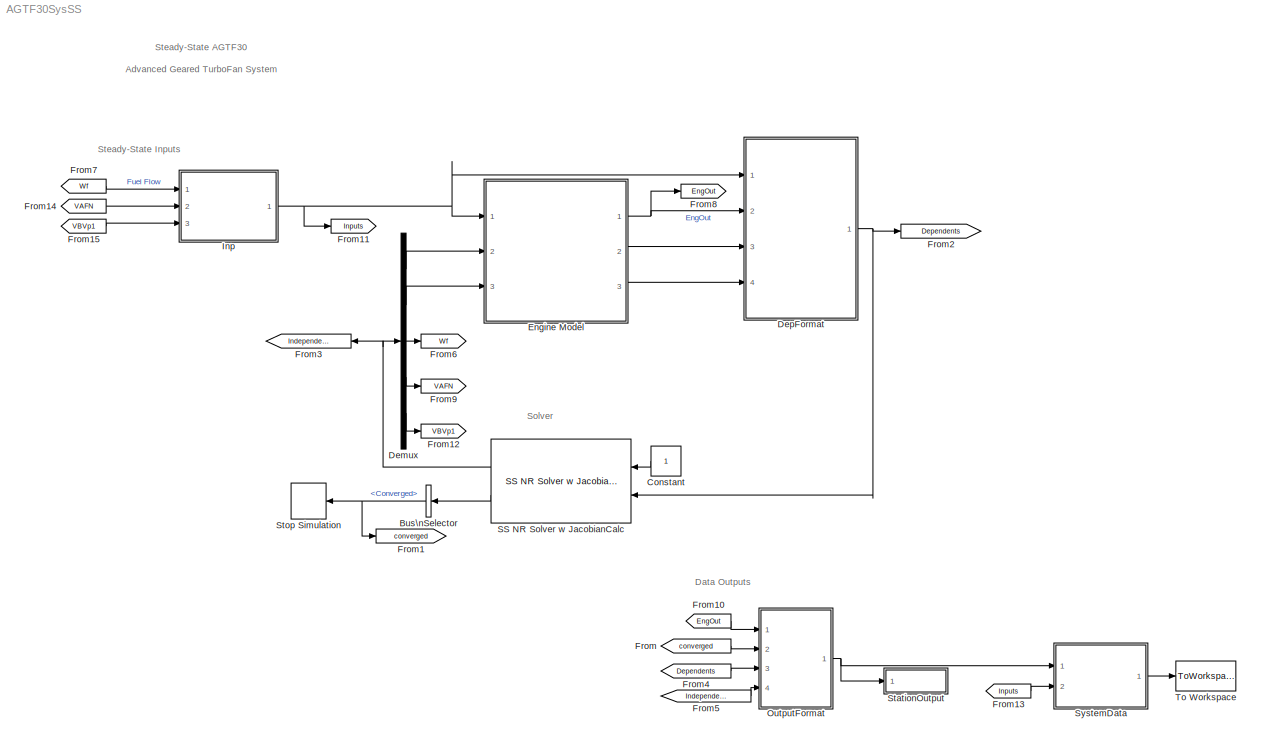
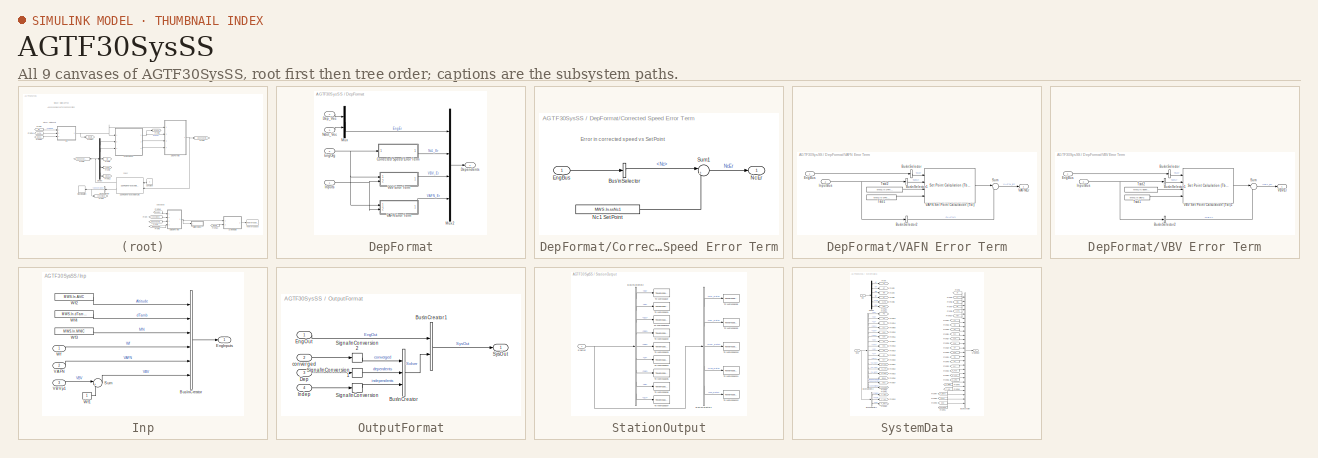
[diagram: thumbnail index - all 9 canvases of the model, root first then tree order]
MODEL AGTF30SysSS
KIND model
BLOCK [BusSelector] Bus\nSelector
  OutputSignals = Converged
  Ports = [1, 1]
  SID = 12
BLOCK [Constant] Constant
  SID = 11
BLOCK [Demux] Demux
  DisplayOption = bar
  Outputs = [7 2 1 1 1]
  Ports = [1, 5]
  SID = 9
BLOCK [SubSystem] DepFormat
  Ports = [4, 1]
  RequestExecContextInheritance = off
  SID = 113
BLOCK [SubSystem] DepFormat/Corrected Speed Error Term
  Ports = [1, 1]
  RequestExecContextInheritance = off
  SID = 333
BLOCK [BusSelector] DepFormat/Corrected Speed Error Term/Bus\nSelector
  OutputSignals = Data.FAN_Data.Nc
  Ports = [1, 1]
  SID = 118
BLOCK [Inport] DepFormat/Corrected Speed Error Term/EngBus
  IconDisplay = Port number
  SID = 334
BLOCK [Constant] DepFormat/Corrected Speed Error Term/Nc1 Set Point
  SID = 263
  Value = MWS.In.ssNc1
BLOCK [Outport] DepFormat/Corrected Speed Error Term/NcEr
  IconDisplay = Port number
  SID = 335
BLOCK [Sum] DepFormat/Corrected Speed Error Term/Sum1
  IconShape = round
  InputSameDT = off
  Inputs = |+-
  OutDataTypeStr = Inherit: Inherit via internal rule
  Ports = [2, 1]
  SID = 108
  SaturateOnIntegerOverflow = off
BLOCK [Inport] DepFormat/Dep_Vec
  IconDisplay = Port number
  Port = 4
  SID = 115
BLOCK [Outport] DepFormat/Dependents
  IconDisplay = Port number
  SID = 117
BLOCK [Inport] DepFormat/EngOrg
  IconDisplay = Port number
  Port = 2
  SID = 116
BLOCK [Inport] DepFormat/Inputs
  IconDisplay = Port number
  SID = 332
BLOCK [Mux] DepFormat/Mux
  DisplayOption = bar
  Inputs = 2
  Ports = [2, 1]
  SID = 10
BLOCK [Mux] DepFormat/Mux2
  DisplayOption = bar
  Ports = [4, 1]
  SID = 103
BLOCK [Inport] DepFormat/Ndot_Vec
  IconDisplay = Port number
  Port = 3
  SID = 114
BLOCK [SubSystem] DepFormat/VAFN Error Term
  Ports = [2, 1]
  RequestExecContextInheritance = off
  SID = 363
BLOCK [BusSelector] DepFormat/VAFN Error Term/Bus\nSelector
  OutputSignals = Data.FAN_Data.Nc
  Ports = [1, 1]
  SID = 366
BLOCK [BusSelector] DepFormat/VAFN Error Term/Bus\nSelector1
  OutputSignals = MN
  Ports = [1, 1]
  SID = 367
BLOCK [BusSelector] DepFormat/VAFN Error Term/Bus\nSelector2
  OutputSignals = VAFN
  Ports = [1, 1]
  SID = 368
BLOCK [Inport] DepFormat/VAFN Error Term/EngBus
  IconDisplay = Port number
  SID = 364
BLOCK [Inport] DepFormat/VAFN Error Term/InputBus
  IconDisplay = Port number
  Port = 2
  SID = 365
BLOCK [Sum] DepFormat/VAFN Error Term/Sum
  IconShape = round
  InputSameDT = off
  Inputs = |+-
  OutDataTypeStr = Inherit: Inherit via internal rule
  Ports = [2, 1]
  SID = 369
  SaturateOnIntegerOverflow = off
BLOCK [Constant] DepFormat/VAFN Error Term/Tstd1
  SID = 370
  Value = MWS.In.VAFNIC
BLOCK [Constant] DepFormat/VAFN Error Term/Tstd2
  SID = 371
  Value = MWS.In.VAFNManEn
BLOCK [Reference] DepFormat/VAFN Error Term/VAFN Set Point Calculation (Tbl)  REF=Lib_Cntrl_SetPoint_TMATS/Set Point Calculation (Tbl)
  DSVec_M = MWS.Cntrl.VAFN_MN
  ERVec_M = MWS.Cntrl.VAFN_Nc1
  Ports = [4, 1]
  SID = 374
  SPArray_M = MWS.Cntrl.VAFN_sch
  SourceBlock = Lib_Cntrl_SetPoint_TMATS/Set Point Calculation (Tbl)
  SourceType = T-MATS: Set Point Calculation (Tbl)
BLOCK [Outport] DepFormat/VAFN Error Term/VAFNEr
  IconDisplay = Port number
  SID = 373
BLOCK [SubSystem] DepFormat/VBV Error Term
  Ports = [2, 1]
  RequestExecContextInheritance = off
  SID = 358
BLOCK [BusSelector] DepFormat/VBV Error Term/Bus\nSelector
  OutputSignals = Data.FAN_Data.Nc
  Ports = [1, 1]
  SID = 344
BLOCK [BusSelector] DepFormat/VBV Error Term/Bus\nSelector1
  OutputSignals = MN
  Ports = [1, 1]
  SID = 353
BLOCK [BusSelector] DepFormat/VBV Error Term/Bus\nSelector2
  OutputSignals = VBV
  Ports = [1, 1]
  SID = 354
BLOCK [Inport] DepFormat/VBV Error Term/EngBus
  IconDisplay = Port number
  SID = 362
BLOCK [Inport] DepFormat/VBV Error Term/InputBus
  IconDisplay = Port number
  Port = 2
  SID = 360
BLOCK [Sum] DepFormat/VBV Error Term/Sum
  IconShape = round
  InputSameDT = off
  Inputs = |+-
  OutDataTypeStr = Inherit: Inherit via internal rule
  Ports = [2, 1]
  SID = 355
  SaturateOnIntegerOverflow = off
BLOCK [Constant] DepFormat/VBV Error Term/Tstd1
  SID = 349
  Value = MWS.In.VBVIC
BLOCK [Constant] DepFormat/VBV Error Term/Tstd2
  SID = 350
  Value = MWS.In.VBVManEn
BLOCK [Reference] DepFormat/VBV Error Term/VBV Set Point Calculation (Tbl)1  REF=Lib_Cntrl_SetPoint_TMATS/Set Point Calculation (Tbl)
  DSVec_M = MWS.Cntrl.VBV_MN
  ERVec_M = MWS.Cntrl.VBV_Nc1
  Ports = [4, 1]
  SID = 342
  SPArray_M = MWS.Cntrl.VBV_sch
  SourceBlock = Lib_Cntrl_SetPoint_TMATS/Set Point Calculation (Tbl)
  SourceType = T-MATS: Set Point Calculation (Tbl)
BLOCK [Outport] DepFormat/VBV Error Term/VBVEr
  IconDisplay = Port number
  SID = 361
BLOCK [ModelReference] Engine Model
  CopyOfModelName = AGTF30_eng.mdl
  DefaultDataLogging = on
  ModelNameDialog = AGTF30_eng.mdl
  ModelReferenceVersion = 1.306
  Ports = [3, 3]
  SID = 7
BLOCK [From] From
  GotoTag = converged
  SID = 78
BLOCK [Goto] From1
  GotoTag = converged
  SID = 81
BLOCK [From] From10
  GotoTag = EngOut
  SID = 132
BLOCK [Goto] From11
  GotoTag = Inputs
  SID = 173
BLOCK [Goto] From12
  GotoTag = VBVp1
  SID = 329
BLOCK [From] From13
  GotoTag = Inputs
  SID = 177
BLOCK [From] From14
  GotoTag = VAFN
  SID = 287
BLOCK [From] From15
  GotoTag = VBVp1
  SID = 331
BLOCK [Goto] From2
  GotoTag = Dependents
  SID = 82
BLOCK [Goto] From3
  GotoTag = Independents
  SID = 83
BLOCK [From] From4
  GotoTag = Dependents
  SID = 85
BLOCK [From] From5
  GotoTag = Independents
  SID = 87
BLOCK [Goto] From6
  GotoTag = Wf
  SID = 99
BLOCK [From] From7
  GotoTag = Wf
  SID = 101
BLOCK [Goto] From8
  GotoTag = EngOut
  SID = 104
BLOCK [Goto] From9
  GotoTag = VAFN
  SID = 328
BLOCK [SubSystem] Inp
  Ports = [3, 1]
  RequestExecContextInheritance = off
  SID = 134
BLOCK [BusCreator] Inp/Bus\nCreator
  DisplayOption = bar
  Inputs = 6
  Ports = [6, 1]
  SID = 352
BLOCK [Outport] Inp/EngInputs
  IconDisplay = Port number
  SID = 136
BLOCK [Sum] Inp/Sum
  IconShape = round
  InputSameDT = off
  Inputs = |+-
  OutDataTypeStr = Inherit: Inherit via internal rule
  Ports = [2, 1]
  SID = 356
  SaturateOnIntegerOverflow = off
BLOCK [Inport] Inp/VAFN
  IconDisplay = Port number
  Port = 2
  SID = 286
BLOCK [Inport] Inp/VBVp1
  IconDisplay = Port number
  Port = 3
  SID = 325
BLOCK [Inport] Inp/Wf
  IconDisplay = Port number
  SID = 135
BLOCK [Constant] Inp/Wf1
  SID = 357
BLOCK [Constant] Inp/Wf2
  SID = 20
  Value = MWS.In.AltIC
BLOCK [Constant] Inp/Wf3
  SID = 18
  Value = MWS.In.MNIC
BLOCK [Constant] Inp/Wf4
  SID = 21
  Value = MWS.In.dTambIC
BLOCK [SubSystem] OutputFormat
  Ports = [4, 1]
  RequestExecContextInheritance = off
  SID = 125
BLOCK [BusCreator] OutputFormat/Bus\nCreator
  DisplayOption = bar
  Inputs = 3
  Ports = [3, 1]
  SID = 79
BLOCK [BusCreator] OutputFormat/Bus\nCreator1
  DisplayOption = bar
  Inputs = 2
  Ports = [2, 1]
  SID = 88
BLOCK [Inport] OutputFormat/Dep
  IconDisplay = Port number
  Port = 3
  SID = 128
BLOCK [Inport] OutputFormat/EngOut
  IconDisplay = Port number
  SID = 126
BLOCK [Inport] OutputFormat/Indep
  IconDisplay = Port number
  Port = 4
  SID = 129
BLOCK [SignalConversion] OutputFormat/Signal\nConversion
  SID = 89
BLOCK [SignalConversion] OutputFormat/Signal\nConversion1
  SID = 90
BLOCK [SignalConversion] OutputFormat/Signal\nConversion2
  SID = 91
BLOCK [Outport] OutputFormat/SysOut
  IconDisplay = Port number
  SID = 130
BLOCK [Inport] OutputFormat/converged
  IconDisplay = Port number
  Port = 2
  SID = 127
BLOCK [Reference] SS NR Solver w JacobianCalc  REF=Lib_Solve_SSNRSolverJC_TMATS/SS NR Solver w JacobianCalc
  Cond_Limits_M = MWS.In.Lim
  Ports = [2, 2]
  SID = 8
  SJac_Per_M = MWS.In.JPerSS
  SJacobianAttempts_M = MWS.In.NRASS
  SNR_DX_M = 1
  SNR_IC_M = [MWS.In.ICcom MWS.In.ICss]'
  SNR_Mn_M = 0.000001
  SNR_Mx_M = 1000000
  SourceBlock = Lib_Solve_SSNRSolverJC_TMATS/SS NR Solver w JacobianCalc
  SourceType = T-MATS: SS NR Solver w Jacobian Calc Library Block
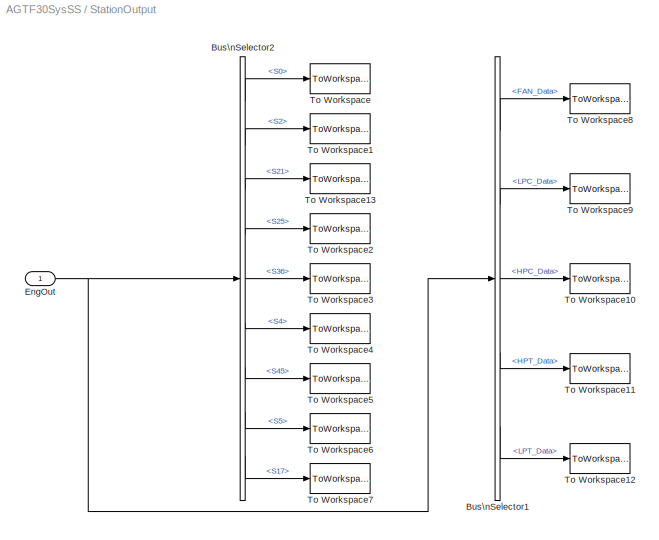
BLOCK [SubSystem] StationOutput
  Ports = [1]
  RequestExecContextInheritance = off
  SID = 43
BLOCK [BusSelector] StationOutput/Bus\nSelector1
  OutputSignals = EngOut.Data.FAN_Data,EngOut.Data.LPC_Data,EngOut.Data.HPC_Data,EngOut.Data.HPT_Data,EngOut.Data.LPT_Data
  Ports = [1, 5]
  SID = 45
BLOCK [BusSelector] StationOutput/Bus\nSelector2
  OutputSignals = EngOut.S0,EngOut.S2,EngOut.S21,EngOut.S25,EngOut.S36,EngOut.S4,EngOut.S45,EngOut.S5,EngOut.S17
  Ports = [1, 9]
  SID = 46
BLOCK [Inport] StationOutput/EngOut
  IconDisplay = Port number
  SID = 44
BLOCK [ToWorkspace] StationOutput/To Workspace
  FixptAsFi = on
  MaxDataPoints = inf
  Ports = [1]
  SID = 47
  SampleTime = -1
  Save2DSignal = 3-D array (concatenate along third dimension)
  SaveFormat = Timeseries
  VariableName = out_S0
BLOCK [ToWorkspace] StationOutput/To Workspace1
  FixptAsFi = on
  MaxDataPoints = inf
  Ports = [1]
  SID = 48
  SampleTime = -1
  Save2DSignal = 3-D array (concatenate along third dimension)
  SaveFormat = Timeseries
  VariableName = out_S2
BLOCK [ToWorkspace] StationOutput/To Workspace10
  FixptAsFi = on
  MaxDataPoints = inf
  Ports = [1]
  SID = 49
  SampleTime = -1
  Save2DSignal = 3-D array (concatenate along third dimension)
  SaveFormat = Timeseries
  VariableName = out_HPCmp
BLOCK [ToWorkspace] StationOutput/To Workspace11
  FixptAsFi = on
  MaxDataPoints = inf
  Ports = [1]
  SID = 50
  SampleTime = -1
  Save2DSignal = 3-D array (concatenate along third dimension)
  SaveFormat = Timeseries
  VariableName = out_HPTmp
BLOCK [ToWorkspace] StationOutput/To Workspace12
  FixptAsFi = on
  MaxDataPoints = inf
  Ports = [1]
  SID = 51
  SampleTime = -1
  Save2DSignal = 3-D array (concatenate along third dimension)
  SaveFormat = Timeseries
  VariableName = out_LPTmp
BLOCK [ToWorkspace] StationOutput/To Workspace13
  FixptAsFi = on
  MaxDataPoints = inf
  Ports = [1]
  SID = 269
  SampleTime = -1
  Save2DSignal = 3-D array (concatenate along third dimension)
  SaveFormat = Timeseries
  VariableName = out_S21
BLOCK [ToWorkspace] StationOutput/To Workspace2
  FixptAsFi = on
  MaxDataPoints = inf
  Ports = [1]
  SID = 52
  SampleTime = -1
  Save2DSignal = 3-D array (concatenate along third dimension)
  SaveFormat = Timeseries
  VariableName = out_S25
BLOCK [ToWorkspace] StationOutput/To Workspace3
  FixptAsFi = on
  MaxDataPoints = inf
  Ports = [1]
  SID = 53
  SampleTime = -1
  Save2DSignal = 3-D array (concatenate along third dimension)
  SaveFormat = Timeseries
  VariableName = out_S36
BLOCK [ToWorkspace] StationOutput/To Workspace4
  FixptAsFi = on
  MaxDataPoints = inf
  Ports = [1]
  SID = 54
  SampleTime = -1
  Save2DSignal = 3-D array (concatenate along third dimension)
  SaveFormat = Timeseries
  VariableName = out_S4
BLOCK [ToWorkspace] StationOutput/To Workspace5
  FixptAsFi = on
  MaxDataPoints = inf
  Ports = [1]
  SID = 55
  SampleTime = -1
  Save2DSignal = 3-D array (concatenate along third dimension)
  SaveFormat = Timeseries
  VariableName = out_S45
BLOCK [ToWorkspace] StationOutput/To Workspace6
  FixptAsFi = on
  MaxDataPoints = inf
  Ports = [1]
  SID = 56
  SampleTime = -1
  Save2DSignal = 3-D array (concatenate along third dimension)
  SaveFormat = Timeseries
  VariableName = out_S5
BLOCK [ToWorkspace] StationOutput/To Workspace7
  FixptAsFi = on
  MaxDataPoints = inf
  Ports = [1]
  SID = 57
  SampleTime = -1
  Save2DSignal = 3-D array (concatenate along third dimension)
  SaveFormat = Timeseries
  VariableName = out_S17
BLOCK [ToWorkspace] StationOutput/To Workspace8
  FixptAsFi = on
  MaxDataPoints = inf
  Ports = [1]
  SID = 58
  SampleTime = -1
  Save2DSignal = 3-D array (concatenate along third dimension)
  SaveFormat = Timeseries
  VariableName = out_FANmp
BLOCK [ToWorkspace] StationOutput/To Workspace9
  FixptAsFi = on
  MaxDataPoints = inf
  Ports = [1]
  SID = 59
  SampleTime = -1
  Save2DSignal = 3-D array (concatenate along third dimension)
  SaveFormat = Timeseries
  VariableName = out_LPCmp
BLOCK [Stop] Stop Simulation
  SID = 13
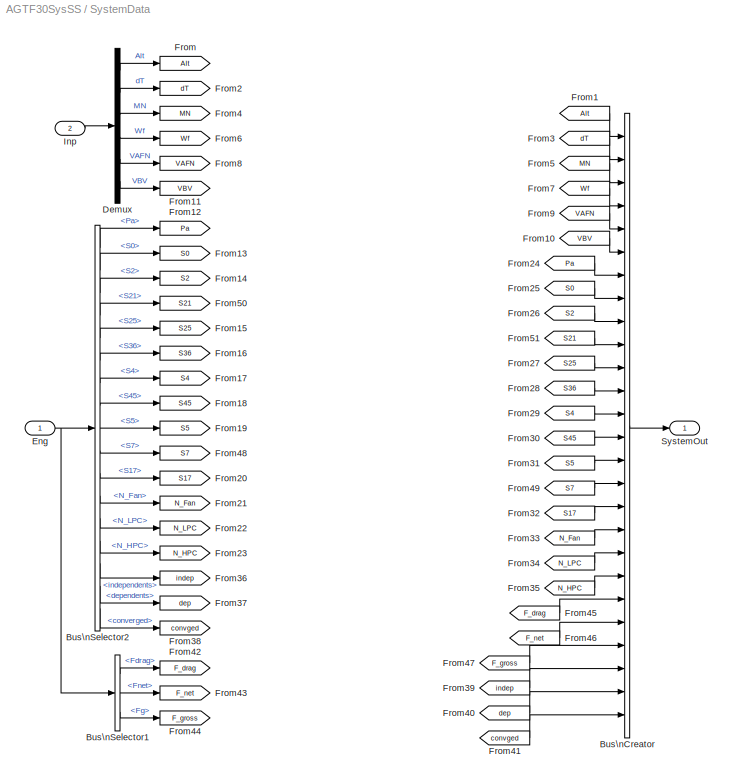
BLOCK [SubSystem] SystemData
  Ports = [2, 1]
  RequestExecContextInheritance = off
  SID = 168
BLOCK [BusCreator] SystemData/Bus\nCreator
  DisplayOption = bar
  Inputs = 26
  Ports = [26, 1]
  SID = 166
BLOCK [BusSelector] SystemData/Bus\nSelector1
  OutputSignals = EngOut.Perf.Fdrag,EngOut.Perf.Fnet,EngOut.Perf.Fg
  Ports = [1, 3]
  SID = 165
BLOCK [BusSelector] SystemData/Bus\nSelector2
  OutputSignals = EngOut.Amb.Pa,EngOut.S0,EngOut.S2,EngOut.S21,EngOut.S25,EngOut.S36,EngOut.S4,EngOut.S45,EngOut.S5,EngOut.S7,EngOut.S17,EngOut.Shaft.N_Fan,EngOut.Shaft.N_LPC,EngOut.Shaft.N_HPC,Solver.independents,Solver.dependents,Solver.converged
  Ports = [1, 17]
  SID = 167
BLOCK [Demux] SystemData/Demux
  DisplayOption = bar
  Outputs = 6
  Ports = [1, 6]
  SID = 179
BLOCK [Inport] SystemData/Eng
  IconDisplay = Port number
  SID = 170
BLOCK [Goto] SystemData/From
  GotoTag = Alt
  SID = 181
BLOCK [From] SystemData/From1
  GotoTag = Alt
  SID = 183
BLOCK [From] SystemData/From10
  GotoTag = VBV
  SID = 197
BLOCK [Goto] SystemData/From11
  GotoTag = VBV
  SID = 199
BLOCK [Goto] SystemData/From12
  GotoTag = Pa
  SID = 200
BLOCK [Goto] SystemData/From13
  GotoTag = S0
  SID = 201
BLOCK [Goto] SystemData/From14
  GotoTag = S2
  SID = 202
BLOCK [Goto] SystemData/From15
  GotoTag = S25
  SID = 203
BLOCK [Goto] SystemData/From16
  GotoTag = S36
  SID = 204
BLOCK [Goto] SystemData/From17
  GotoTag = S4
  SID = 205
BLOCK [Goto] SystemData/From18
  GotoTag = S45
  SID = 206
BLOCK [Goto] SystemData/From19
  GotoTag = S5
  SID = 207
BLOCK [Goto] SystemData/From2
  GotoTag = dT
  SID = 184
BLOCK [Goto] SystemData/From20
  GotoTag = S17
  SID = 208
BLOCK [Goto] SystemData/From21
  GotoTag = N_Fan
  SID = 209
BLOCK [Goto] SystemData/From22
  GotoTag = N_LPC
  SID = 210
BLOCK [Goto] SystemData/From23
  GotoTag = N_HPC
  SID = 211
BLOCK [From] SystemData/From24
  GotoTag = Pa
  SID = 224
BLOCK [From] SystemData/From25
  GotoTag = S0
  SID = 225
BLOCK [From] SystemData/From26
  GotoTag = S2
  SID = 226
BLOCK [From] SystemData/From27
  GotoTag = S25
  SID = 227
BLOCK [From] SystemData/From28
  GotoTag = S36
  SID = 228
BLOCK [From] SystemData/From29
  GotoTag = S4
  SID = 229
BLOCK [From] SystemData/From3
  GotoTag = dT
  SID = 186
BLOCK [From] SystemData/From30
  GotoTag = S45
  SID = 230
BLOCK [From] SystemData/From31
  GotoTag = S5
  SID = 231
BLOCK [From] SystemData/From32
  GotoTag = S17
  SID = 232
BLOCK [From] SystemData/From33
  GotoTag = N_Fan
  SID = 233
BLOCK [From] SystemData/From34
  GotoTag = N_LPC
  SID = 234
BLOCK [From] SystemData/From35
  GotoTag = N_HPC
  SID = 235
BLOCK [Goto] SystemData/From36
  GotoTag = indep
  SID = 236
BLOCK [Goto] SystemData/From37
  GotoTag = dep
  SID = 237
BLOCK [Goto] SystemData/From38
  GotoTag = convged
  SID = 238
BLOCK [From] SystemData/From39
  GotoTag = indep
  SID = 242
BLOCK [Goto] SystemData/From4
  GotoTag = MN
  SID = 187
BLOCK [From] SystemData/From40
  GotoTag = dep
  SID = 243
BLOCK [From] SystemData/From41
  GotoTag = convged
  SID = 244
BLOCK [Goto] SystemData/From42
  GotoTag = F_drag
  SID = 245
BLOCK [Goto] SystemData/From43
  GotoTag = F_net
  SID = 246
BLOCK [Goto] SystemData/From44
  GotoTag = F_gross
  SID = 247
BLOCK [From] SystemData/From45
  GotoTag = F_drag
  SID = 251
BLOCK [From] SystemData/From46
  GotoTag = F_net
  SID = 252
BLOCK [From] SystemData/From47
  GotoTag = F_gross
  SID = 253
BLOCK [Goto] SystemData/From48
  GotoTag = S7
  SID = 272
BLOCK [From] SystemData/From49
  GotoTag = S7
  SID = 273
BLOCK [From] SystemData/From5
  GotoTag = MN
  SID = 189
BLOCK [Goto] SystemData/From50
  GotoTag = S21
  SID = 278
BLOCK [From] SystemData/From51
  GotoTag = S21
  SID = 279
BLOCK [Goto] SystemData/From6
  GotoTag = Wf
  SID = 190
BLOCK [From] SystemData/From7
  GotoTag = Wf
  SID = 192
BLOCK [Goto] SystemData/From8
  GotoTag = VAFN
  SID = 194
BLOCK [From] SystemData/From9
  GotoTag = VAFN
  SID = 196
BLOCK [Inport] SystemData/Inp
  IconDisplay = Port number
  Port = 2
  SID = 176
BLOCK [Outport] SystemData/SystemOut
  IconDisplay = Port number
  SID = 171
BLOCK [ToWorkspace] To Workspace
  FixptAsFi = on
  MaxDataPoints = 1
  Ports = [1]
  SID = 23
  SampleTime = -1
  Save2DSignal = 3-D array (concatenate along third dimension)
  SaveFormat = Timeseries
  VariableName = out_SS
ANNOTATION (root): \n \n Steady-State AGTF30 \n Advanced Geared TurboFan System
ANNOTATION (root): \n \n Data Outputs
ANNOTATION (root): \n \n Steady-State Inputs
ANNOTATION (root): \n \n Solver
ANNOTATION DepFormat: \n \n
ANNOTATION DepFormat/Corrected Speed Error Term: Error in corrected speed vs Set Point
NET Bus\nSelector:1 -> From1:1, Stop Simulation:1
LINE Constant:1 -> SS NR Solver w JacobianCalc:1
LINE Demux:1 -> Engine Model:2
LINE Demux:2 -> Engine Model:3
LINE Demux:3 -> From6:1
LINE Demux:4 -> From9:1
LINE Demux:5 -> From12:1
LINE DepFormat/Corrected Speed Error Term/Bus\nSelector:1 -> DepFormat/Corrected Speed Error Term/Sum1:1
LINE DepFormat/Corrected Speed Error Term/EngBus:1 -> DepFormat/Corrected Speed Error Term/Bus\nSelector:1
LINE DepFormat/Corrected Speed Error Term/Nc1 Set Point:1 -> DepFormat/Corrected Speed Error Term/Sum1:2
LINE DepFormat/Corrected Speed Error Term/Sum1:1 -> DepFormat/Corrected Speed Error Term/NcEr:1
LINE DepFormat/Corrected Speed Error Term:1 -> DepFormat/Mux2:2
LINE DepFormat/Dep_Vec:1 -> DepFormat/Mux:1
NET DepFormat/EngOrg:1 -> DepFormat/Corrected Speed Error Term:1, DepFormat/VAFN Error Term:1, DepFormat/VBV Error Term:1
NET DepFormat/Inputs:1 -> DepFormat/VAFN Error Term:2, DepFormat/VBV Error Term:2
LINE DepFormat/Mux2:1 -> DepFormat/Dependents:1
LINE DepFormat/Mux:1 -> DepFormat/Mux2:1
LINE DepFormat/Ndot_Vec:1 -> DepFormat/Mux:2
LINE DepFormat/VAFN Error Term/Bus\nSelector1:1 -> DepFormat/VAFN Error Term/VAFN Set Point Calculation (Tbl):2
LINE DepFormat/VAFN Error Term/Bus\nSelector2:1 -> DepFormat/VAFN Error Term/Sum:2
LINE DepFormat/VAFN Error Term/Bus\nSelector:1 -> DepFormat/VAFN Error Term/VAFN Set Point Calculation (Tbl):1
LINE DepFormat/VAFN Error Term/EngBus:1 -> DepFormat/VAFN Error Term/Bus\nSelector:1
NET DepFormat/VAFN Error Term/InputBus:1 -> DepFormat/VAFN Error Term/Bus\nSelector1:1, DepFormat/VAFN Error Term/Bus\nSelector2:1
LINE DepFormat/VAFN Error Term/Sum:1 -> DepFormat/VAFN Error Term/VAFNEr:1
LINE DepFormat/VAFN Error Term/Tstd1:1 -> DepFormat/VAFN Error Term/VAFN Set Point Calculation (Tbl):4
LINE DepFormat/VAFN Error Term/Tstd2:1 -> DepFormat/VAFN Error Term/VAFN Set Point Calculation (Tbl):3
LINE DepFormat/VAFN Error Term/VAFN Set Point Calculation (Tbl):1 -> DepFormat/VAFN Error Term/Sum:1
LINE DepFormat/VAFN Error Term:1 -> DepFormat/Mux2:4
LINE DepFormat/VBV Error Term/Bus\nSelector1:1 -> DepFormat/VBV Error Term/VBV Set Point Calculation (Tbl)1:2
LINE DepFormat/VBV Error Term/Bus\nSelector2:1 -> DepFormat/VBV Error Term/Sum:2
LINE DepFormat/VBV Error Term/Bus\nSelector:1 -> DepFormat/VBV Error Term/VBV Set Point Calculation (Tbl)1:1
LINE DepFormat/VBV Error Term/EngBus:1 -> DepFormat/VBV Error Term/Bus\nSelector:1
NET DepFormat/VBV Error Term/InputBus:1 -> DepFormat/VBV Error Term/Bus\nSelector1:1, DepFormat/VBV Error Term/Bus\nSelector2:1
LINE DepFormat/VBV Error Term/Sum:1 -> DepFormat/VBV Error Term/VBVEr:1
LINE DepFormat/VBV Error Term/Tstd1:1 -> DepFormat/VBV Error Term/VBV Set Point Calculation (Tbl)1:4
LINE DepFormat/VBV Error Term/Tstd2:1 -> DepFormat/VBV Error Term/VBV Set Point Calculation (Tbl)1:3
LINE DepFormat/VBV Error Term/VBV Set Point Calculation (Tbl)1:1 -> DepFormat/VBV Error Term/Sum:1
LINE DepFormat/VBV Error Term:1 -> DepFormat/Mux2:3
NET DepFormat:1 -> From2:1, SS NR Solver w JacobianCalc:2
NET Engine Model:1 -> DepFormat:2, From8:1
LINE Engine Model:2 -> DepFormat:3
LINE Engine Model:3 -> DepFormat:4
LINE From10:1 -> OutputFormat:1
LINE From13:1 -> SystemData:2
LINE From14:1 -> Inp:2
LINE From15:1 -> Inp:3
LINE From4:1 -> OutputFormat:3
LINE From5:1 -> OutputFormat:4
LINE From7:1 -> Inp:1
LINE From:1 -> OutputFormat:2
LINE Inp/Bus\nCreator:1 -> Inp/EngInputs:1
LINE Inp/Sum:1 -> Inp/Bus\nCreator:6
LINE Inp/VAFN:1 -> Inp/Bus\nCreator:5
LINE Inp/VBVp1:1 -> Inp/Sum:1
LINE Inp/Wf1:1 -> Inp/Sum:2
LINE Inp/Wf2:1 -> Inp/Bus\nCreator:1
LINE Inp/Wf3:1 -> Inp/Bus\nCreator:3
LINE Inp/Wf4:1 -> Inp/Bus\nCreator:2
LINE Inp/Wf:1 -> Inp/Bus\nCreator:4
NET Inp:1 -> DepFormat:1, Engine Model:1, From11:1
LINE OutputFormat/Bus\nCreator1:1 -> OutputFormat/SysOut:1
LINE OutputFormat/Bus\nCreator:1 -> OutputFormat/Bus\nCreator1:2
LINE OutputFormat/Dep:1 -> OutputFormat/Signal\nConversion1:1
LINE OutputFormat/EngOut:1 -> OutputFormat/Bus\nCreator1:1
LINE OutputFormat/Indep:1 -> OutputFormat/Signal\nConversion:1
LINE OutputFormat/Signal\nConversion1:1 -> OutputFormat/Bus\nCreator:2
LINE OutputFormat/Signal\nConversion2:1 -> OutputFormat/Bus\nCreator:1
LINE OutputFormat/Signal\nConversion:1 -> OutputFormat/Bus\nCreator:3
LINE OutputFormat/converged:1 -> OutputFormat/Signal\nConversion2:1
NET OutputFormat:1 -> StationOutput:1, SystemData:1
NET SS NR Solver w JacobianCalc:1 -> Demux:1, From3:1
LINE SS NR Solver w JacobianCalc:2 -> Bus\nSelector:1
LINE StationOutput/Bus\nSelector1:1 -> StationOutput/To Workspace8:1
LINE StationOutput/Bus\nSelector1:2 -> StationOutput/To Workspace9:1
LINE StationOutput/Bus\nSelector1:3 -> StationOutput/To Workspace10:1
LINE StationOutput/Bus\nSelector1:4 -> StationOutput/To Workspace11:1
LINE StationOutput/Bus\nSelector1:5 -> StationOutput/To Workspace12:1
LINE StationOutput/Bus\nSelector2:1 -> StationOutput/To Workspace:1
LINE StationOutput/Bus\nSelector2:2 -> StationOutput/To Workspace1:1
LINE StationOutput/Bus\nSelector2:3 -> StationOutput/To Workspace13:1
LINE StationOutput/Bus\nSelector2:4 -> StationOutput/To Workspace2:1
LINE StationOutput/Bus\nSelector2:5 -> StationOutput/To Workspace3:1
LINE StationOutput/Bus\nSelector2:6 -> StationOutput/To Workspace4:1
LINE StationOutput/Bus\nSelector2:7 -> StationOutput/To Workspace5:1
LINE StationOutput/Bus\nSelector2:8 -> StationOutput/To Workspace6:1
LINE StationOutput/Bus\nSelector2:9 -> StationOutput/To Workspace7:1
NET StationOutput/EngOut:1 -> StationOutput/Bus\nSelector1:1, StationOutput/Bus\nSelector2:1
LINE SystemData/Bus\nCreator:1 -> SystemData/SystemOut:1
LINE SystemData/Bus\nSelector1:1 -> SystemData/From42:1
LINE SystemData/Bus\nSelector1:2 -> SystemData/From43:1
LINE SystemData/Bus\nSelector1:3 -> SystemData/From44:1
LINE SystemData/Bus\nSelector2:1 -> SystemData/From12:1
LINE SystemData/Bus\nSelector2:10 -> SystemData/From48:1
LINE SystemData/Bus\nSelector2:11 -> SystemData/From20:1
LINE SystemData/Bus\nSelector2:12 -> SystemData/From21:1
LINE SystemData/Bus\nSelector2:13 -> SystemData/From22:1
LINE SystemData/Bus\nSelector2:14 -> SystemData/From23:1
LINE SystemData/Bus\nSelector2:15 -> SystemData/From36:1
LINE SystemData/Bus\nSelector2:16 -> SystemData/From37:1
LINE SystemData/Bus\nSelector2:17 -> SystemData/From38:1
LINE SystemData/Bus\nSelector2:2 -> SystemData/From13:1
LINE SystemData/Bus\nSelector2:3 -> SystemData/From14:1
LINE SystemData/Bus\nSelector2:4 -> SystemData/From50:1
LINE SystemData/Bus\nSelector2:5 -> SystemData/From15:1
LINE SystemData/Bus\nSelector2:6 -> SystemData/From16:1
LINE SystemData/Bus\nSelector2:7 -> SystemData/From17:1
LINE SystemData/Bus\nSelector2:8 -> SystemData/From18:1
LINE SystemData/Bus\nSelector2:9 -> SystemData/From19:1
LINE SystemData/Demux:1 -> SystemData/From:1
LINE SystemData/Demux:2 -> SystemData/From2:1
LINE SystemData/Demux:3 -> SystemData/From4:1
LINE SystemData/Demux:4 -> SystemData/From6:1
LINE SystemData/Demux:5 -> SystemData/From8:1
LINE SystemData/Demux:6 -> SystemData/From11:1
NET SystemData/Eng:1 -> SystemData/Bus\nSelector1:1, SystemData/Bus\nSelector2:1
LINE SystemData/From10:1 -> SystemData/Bus\nCreator:6
LINE SystemData/From1:1 -> SystemData/Bus\nCreator:1
LINE SystemData/From24:1 -> SystemData/Bus\nCreator:7
LINE SystemData/From25:1 -> SystemData/Bus\nCreator:8
LINE SystemData/From26:1 -> SystemData/Bus\nCreator:9
LINE SystemData/From27:1 -> SystemData/Bus\nCreator:11
LINE SystemData/From28:1 -> SystemData/Bus\nCreator:12
LINE SystemData/From29:1 -> SystemData/Bus\nCreator:13
LINE SystemData/From30:1 -> SystemData/Bus\nCreator:14
LINE SystemData/From31:1 -> SystemData/Bus\nCreator:15
LINE SystemData/From32:1 -> SystemData/Bus\nCreator:17
LINE SystemData/From33:1 -> SystemData/Bus\nCreator:18
LINE SystemData/From34:1 -> SystemData/Bus\nCreator:19
LINE SystemData/From35:1 -> SystemData/Bus\nCreator:20
LINE SystemData/From39:1 -> SystemData/Bus\nCreator:24
LINE SystemData/From3:1 -> SystemData/Bus\nCreator:2
LINE SystemData/From40:1 -> SystemData/Bus\nCreator:25
LINE SystemData/From41:1 -> SystemData/Bus\nCreator:26
LINE SystemData/From45:1 -> SystemData/Bus\nCreator:21
LINE SystemData/From46:1 -> SystemData/Bus\nCreator:22
LINE SystemData/From47:1 -> SystemData/Bus\nCreator:23
LINE SystemData/From49:1 -> SystemData/Bus\nCreator:16
LINE SystemData/From51:1 -> SystemData/Bus\nCreator:10
LINE SystemData/From5:1 -> SystemData/Bus\nCreator:3
LINE SystemData/From7:1 -> SystemData/Bus\nCreator:4
LINE SystemData/From9:1 -> SystemData/Bus\nCreator:5
LINE SystemData/Inp:1 -> SystemData/Demux:1
LINE SystemData:1 -> To Workspace:1
note: NET lines group one-source signal fan-out (src -> all destinations, sorted); 1:1 wires keep LINE
